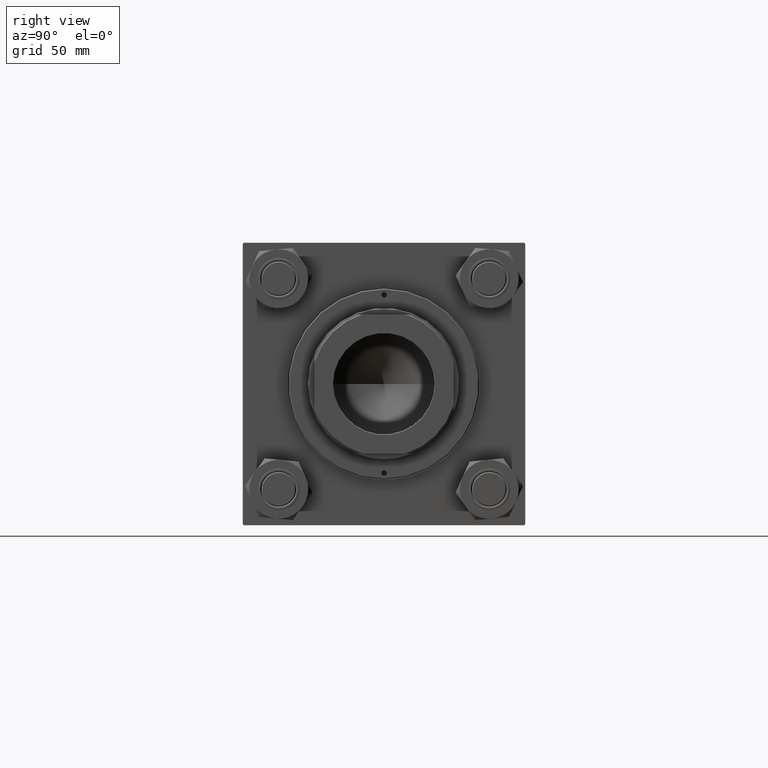
[diagram: clean part render]
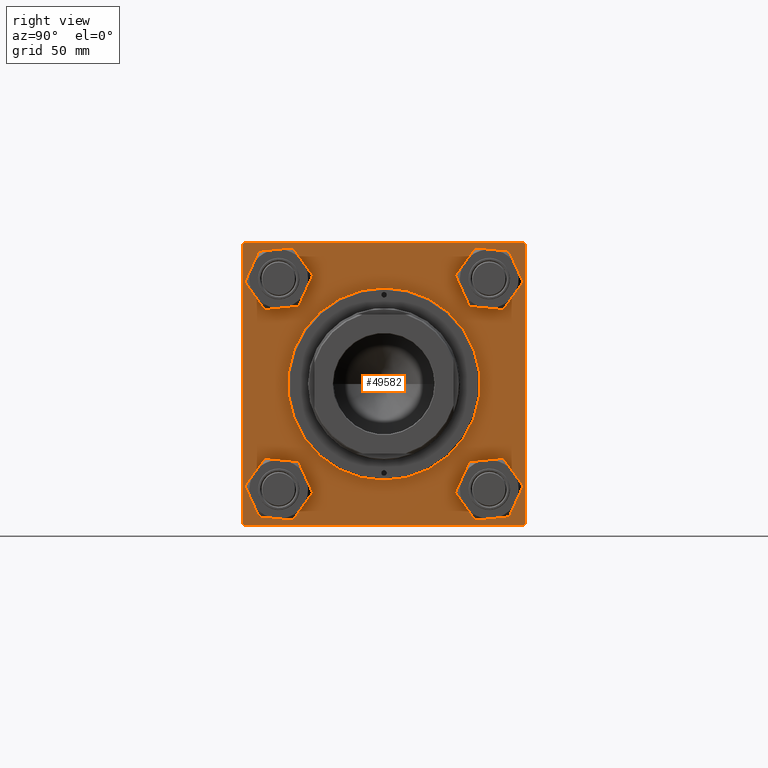
[diagram: same view with one face highlighted and labeled with its STEP entity id]
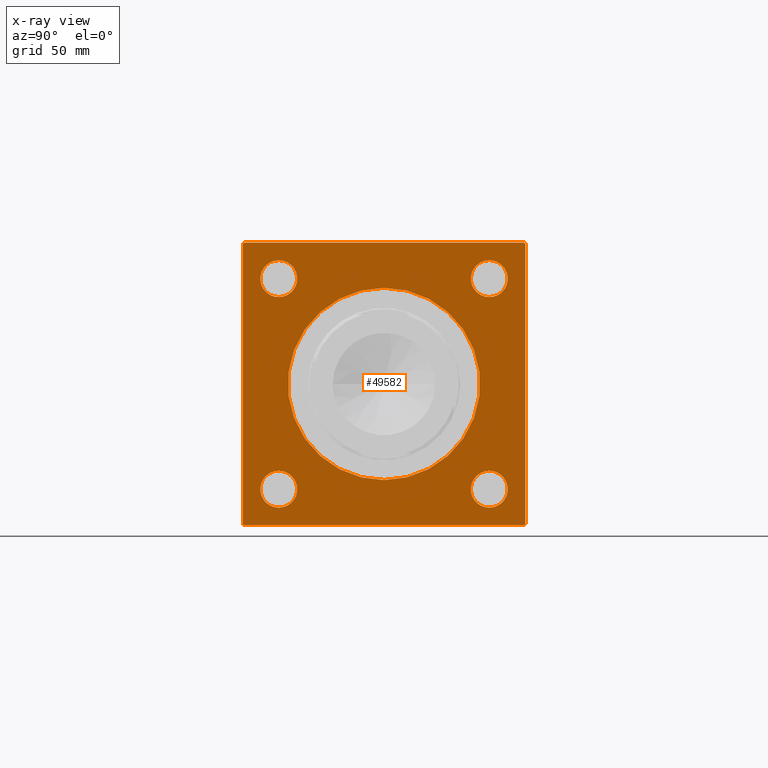
[diagram: x-ray of the same camera — body ghosted, the highlighted face saturated]
A machine part, right view. The second image highlights one B-rep face of the part: STEP entity #49582.
The next image is the same camera in x-ray: the body ghosted, the highlighted face saturated — about 0% of this face is hidden behind the body in this view.
In plain terms, the highlighted planar face has unit normal (-1, 0, 0).
Its self-contained STEP definition (entity closure, byte-faithful):
#9 = CARTESIAN_POINT ( 'NONE',  ( 188.0000000000000000, 64.50000000000005684, 65.00000000000001421 ) ) ;
#875 = FACE_BOUND ( 'NONE', #41148, .T. ) ;
#1134 = VERTEX_POINT ( 'NONE', #33930 ) ;
#1145 = CIRCLE ( 'NONE', #39385, 8.499999999999923617 ) ;
#1274 = DIRECTION ( 'NONE',  ( 0.000000000000000000, 0.000000000000000000, -1.000000000000000000 ) ) ;
#1844 = LINE ( 'NONE', #20961, #4630 ) ;
#2309 = DIRECTION ( 'NONE',  ( 0.000000000000000000, 0.000000000000000000, 1.000000000000000000 ) ) ;
#2698 = DIRECTION ( 'NONE',  ( 0.000000000000000000, 0.000000000000000000, 1.000000000000000000 ) ) ;
#2779 = DIRECTION ( 'NONE',  ( 0.000000000000000000, -1.000000000000000000, -1.067522139062650425E-16 ) ) ;
#2794 = CARTESIAN_POINT ( 'NONE',  ( 188.0000000000000000, 48.45000000000000995, 48.45000000000001705 ) ) ;
#2815 = ORIENTED_EDGE ( 'NONE', *, *, #35976, .T. ) ;
#2884 = LINE ( 'NONE', #33983, #15888 ) ;
#2941 = CARTESIAN_POINT ( 'NONE',  ( 188.0000000000000000, -64.99999999999998579, -64.50000000000002842 ) ) ;
#3026 = CIRCLE ( 'NONE', #46171, 8.499999999999923617 ) ;
#3197 = DIRECTION ( 'NONE',  ( 0.000000000000000000, 0.000000000000000000, 1.000000000000000000 ) ) ;
#3887 = ORIENTED_EDGE ( 'NONE', *, *, #15092, .T. ) ;
#3913 = CIRCLE ( 'NONE', #26737, 44.24999999999998579 ) ;
#4044 = VECTOR ( 'NONE', #42610, 1000.000000000000000 ) ;
#4048 = EDGE_LOOP ( 'NONE', ( #3887, #21356, #24901, #35928, #26268, #5721, #15705, #9945 ) ) ;
#4440 = FACE_BOUND ( 'NONE', #16186, .T. ) ;
#4630 = VECTOR ( 'NONE', #49265, 1000.000000000000000 ) ;
#5020 = VERTEX_POINT ( 'NONE', #46798 ) ;
#5179 = VERTEX_POINT ( 'NONE', #40887 ) ;
#5222 = AXIS2_PLACEMENT_3D ( 'NONE', #20505, #12363, #43978 ) ;
#5512 = LINE ( 'NONE', #9, #33856 ) ;
#5631 = CARTESIAN_POINT ( 'NONE',  ( 188.0000000000000000, -48.44999999999999574, -48.45000000000003126 ) ) ;
#5714 = DIRECTION ( 'NONE',  ( 0.000000000000000000, 0.000000000000000000, 1.000000000000000000 ) ) ;
#5721 = ORIENTED_EDGE ( 'NONE', *, *, #14626, .T. ) ;
#5783 = VERTEX_POINT ( 'NONE', #11870 ) ;
#5894 = VECTOR ( 'NONE', #50170, 999.9999999999998863 ) ;
#5965 = EDGE_CURVE ( 'NONE', #8320, #1134, #15832, .T. ) ;
#6529 = DIRECTION ( 'NONE',  ( -1.000000000000000000, 0.000000000000000000, -0.000000000000000000 ) ) ;
#7080 = ORIENTED_EDGE ( 'NONE', *, *, #42500, .T. ) ;
#7576 = CIRCLE ( 'NONE', #40940, 44.24999999999998579 ) ;
#7756 = DIRECTION ( 'NONE',  ( -1.000000000000000000, 0.000000000000000000, -0.000000000000000000 ) ) ;
#8320 = VERTEX_POINT ( 'NONE', #2941 ) ;
#8332 = AXIS2_PLACEMENT_3D ( 'NONE', #33350, #48663, #20869 ) ;
#8637 = VECTOR ( 'NONE', #38059, 1000.000000000000000 ) ;
#9578 = AXIS2_PLACEMENT_3D ( 'NONE', #44726, #17946, #5714 ) ;
#9686 = DIRECTION ( 'NONE',  ( 0.000000000000000000, 0.000000000000000000, 1.000000000000000000 ) ) ;
#9937 = VERTEX_POINT ( 'NONE', #25119 ) ;
#9945 = ORIENTED_EDGE ( 'NONE', *, *, #37678, .T. ) ;
#10754 = CARTESIAN_POINT ( 'NONE',  ( 188.0000000000000000, -48.44999999999999574, -39.95000000000010232 ) ) ;
#11488 = EDGE_CURVE ( 'NONE', #33847, #5179, #23172, .T. ) ;
#11661 = CARTESIAN_POINT ( 'NONE',  ( 188.0000000000000000, -64.99999999999998579, 64.50000000000008527 ) ) ;
#11870 = CARTESIAN_POINT ( 'NONE',  ( 188.0000000000000000, -48.44999999999999574, 39.95000000000010232 ) ) ;
#12363 = DIRECTION ( 'NONE',  ( -1.000000000000000000, 0.000000000000000000, -0.000000000000000000 ) ) ;
#12418 = EDGE_CURVE ( 'NONE', #48981, #1134, #2884, .T. ) ;
#12610 = ORIENTED_EDGE ( 'NONE', *, *, #11488, .T. ) ;
#13088 = EDGE_CURVE ( 'NONE', #45379, #44006, #1145, .T. ) ;
#13293 = EDGE_CURVE ( 'NONE', #5783, #27961, #23129, .T. ) ;
#13929 = CARTESIAN_POINT ( 'NONE',  ( 188.0000000000000000, 48.45000000000000995, -48.45000000000001705 ) ) ;
#14393 = DIRECTION ( 'NONE',  ( 0.000000000000000000, 0.000000000000000000, 1.000000000000000000 ) ) ;
#14626 = EDGE_CURVE ( 'NONE', #30441, #44946, #5512, .T. ) ;
#14799 = CIRCLE ( 'NONE', #21291, 8.499999999999923617 ) ;
#15092 = EDGE_CURVE ( 'NONE', #25868, #8320, #22513, .T. ) ;
#15428 = FACE_BOUND ( 'NONE', #35474, .T. ) ;
#15705 = ORIENTED_EDGE ( 'NONE', *, *, #39998, .T. ) ;
#15832 = LINE ( 'NONE', #27071, #4044 ) ;
#15849 = AXIS2_PLACEMENT_3D ( 'NONE', #5631, #29589, #2309 ) ;
#15888 = VECTOR ( 'NONE', #41639, 1000.000000000000000 ) ;
#16186 = EDGE_LOOP ( 'NONE', ( #16742, #12610 ) ) ;
#16263 = ORIENTED_EDGE ( 'NONE', *, *, #23770, .T. ) ;
#16667 = PLANE ( 'NONE',  #29081 ) ;
#16742 = ORIENTED_EDGE ( 'NONE', *, *, #19506, .T. ) ;
#16800 = VERTEX_POINT ( 'NONE', #32886 ) ;
#17846 = DIRECTION ( 'NONE',  ( -1.000000000000000000, 0.000000000000000000, -0.000000000000000000 ) ) ;
#17946 = DIRECTION ( 'NONE',  ( -1.000000000000000000, 0.000000000000000000, -0.000000000000000000 ) ) ;
#18234 = DIRECTION ( 'NONE',  ( -1.000000000000000000, 0.000000000000000000, -0.000000000000000000 ) ) ;
#18580 = CARTESIAN_POINT ( 'NONE',  ( 188.0000000000000000, 65.00000000000002842, 65.00000000000001421 ) ) ;
#19402 = CARTESIAN_POINT ( 'NONE',  ( 188.0000000000000000, 64.50000000000005684, 65.00000000000001421 ) ) ;
#19506 = EDGE_CURVE ( 'NONE', #5179, #33847, #37276, .T. ) ;
#19793 = VERTEX_POINT ( 'NONE', #25739 ) ;
#19794 = VECTOR ( 'NONE', #1274, 1000.000000000000000 ) ;
#19867 = CIRCLE ( 'NONE', #29668, 8.499999999999923617 ) ;
#19938 = VERTEX_POINT ( 'NONE', #31821 ) ;
#20505 = CARTESIAN_POINT ( 'NONE',  ( 188.0000000000000000, -48.44999999999999574, 48.45000000000003126 ) ) ;
#20869 = DIRECTION ( 'NONE',  ( 0.000000000000000000, 0.000000000000000000, 1.000000000000000000 ) ) ;
#20961 = CARTESIAN_POINT ( 'NONE',  ( 188.0000000000000000, 65.00000000000002842, -64.50000000000001421 ) ) ;
#21291 = AXIS2_PLACEMENT_3D ( 'NONE', #37862, #18234, #3197 ) ;
#21356 = ORIENTED_EDGE ( 'NONE', *, *, #5965, .T. ) ;
#22513 = LINE ( 'NONE', #29924, #8637 ) ;
#22763 = ORIENTED_EDGE ( 'NONE', *, *, #32064, .T. ) ;
#23129 = CIRCLE ( 'NONE', #5222, 8.499999999999923617 ) ;
#23172 = CIRCLE ( 'NONE', #15849, 8.499999999999923617 ) ;
#23209 = VERTEX_POINT ( 'NONE', #44410 ) ;
#23311 = DIRECTION ( 'NONE',  ( 0.000000000000000000, 0.000000000000000000, 1.000000000000000000 ) ) ;
#23770 = EDGE_CURVE ( 'NONE', #5020, #19938, #3913, .T. ) ;
#24901 = ORIENTED_EDGE ( 'NONE', *, *, #12418, .F. ) ;
#25119 = CARTESIAN_POINT ( 'NONE',  ( 188.0000000000000000, -64.50000000000008527, 65.00000000000000000 ) ) ;
#25739 = CARTESIAN_POINT ( 'NONE',  ( 188.0000000000000000, 48.45000000000000995, 39.95000000000008811 ) ) ;
#25868 = VERTEX_POINT ( 'NONE', #38510 ) ;
#26268 = ORIENTED_EDGE ( 'NONE', *, *, #39981, .F. ) ;
#26737 = AXIS2_PLACEMENT_3D ( 'NONE', #42157, #29683, #14393 ) ;
#26835 = DIRECTION ( 'NONE',  ( -1.000000000000000000, 0.000000000000000000, -0.000000000000000000 ) ) ;
#27071 = CARTESIAN_POINT ( 'NONE',  ( 188.0000000000000000, -64.50000000000002842, -65.00000000000001421 ) ) ;
#27580 = ORIENTED_EDGE ( 'NONE', *, *, #13088, .T. ) ;
#27889 = CARTESIAN_POINT ( 'NONE',  ( 188.0000000000000000, 64.50000000000002842, -64.99999999999998579 ) ) ;
#27961 = VERTEX_POINT ( 'NONE', #47488 ) ;
#28148 = FACE_OUTER_BOUND ( 'NONE', #4048, .T. ) ;
#28409 = FACE_BOUND ( 'NONE', #46796, .T. ) ;
#29081 = AXIS2_PLACEMENT_3D ( 'NONE', #48532, #29150, #32211 ) ;
#29150 = DIRECTION ( 'NONE',  ( -1.000000000000000000, 0.000000000000000000, -0.000000000000000000 ) ) ;
#29589 = DIRECTION ( 'NONE',  ( -1.000000000000000000, 0.000000000000000000, -0.000000000000000000 ) ) ;
#29668 = AXIS2_PLACEMENT_3D ( 'NONE', #2794, #17846, #9686 ) ;
#29683 = DIRECTION ( 'NONE',  ( -1.000000000000000000, 0.000000000000000000, -0.000000000000000000 ) ) ;
#29924 = CARTESIAN_POINT ( 'NONE',  ( 188.0000000000000000, -64.99999999999998579, 65.00000000000000000 ) ) ;
#30327 = CIRCLE ( 'NONE', #8332, 8.499999999999923617 ) ;
#30441 = VERTEX_POINT ( 'NONE', #48796 ) ;
#31821 = CARTESIAN_POINT ( 'NONE',  ( 188.0000000000000000, 0.000000000000000000, -44.24999999999998579 ) ) ;
#32064 = EDGE_CURVE ( 'NONE', #27961, #5783, #14799, .T. ) ;
#32211 = DIRECTION ( 'NONE',  ( -0.000000000000000000, 0.000000000000000000, 1.000000000000000000 ) ) ;
#32886 = CARTESIAN_POINT ( 'NONE',  ( 188.0000000000000000, 48.45000000000000995, 56.94999999999993889 ) ) ;
#33350 = CARTESIAN_POINT ( 'NONE',  ( 188.0000000000000000, 48.45000000000000995, 48.45000000000001705 ) ) ;
#33777 = CARTESIAN_POINT ( 'NONE',  ( 188.0000000000000000, 48.45000000000000995, -56.94999999999993889 ) ) ;
#33847 = VERTEX_POINT ( 'NONE', #10754 ) ;
#33856 = VECTOR ( 'NONE', #47174, 1000.000000000000000 ) ;
#33871 = LINE ( 'NONE', #18580, #48313 ) ;
#33930 = CARTESIAN_POINT ( 'NONE',  ( 188.0000000000000000, -64.50000000000002842, -65.00000000000001421 ) ) ;
#33983 = CARTESIAN_POINT ( 'NONE',  ( 188.0000000000000000, 65.00000000000002842, -64.99999999999998579 ) ) ;
#35474 = EDGE_LOOP ( 'NONE', ( #7080, #49718 ) ) ;
#35928 = ORIENTED_EDGE ( 'NONE', *, *, #44734, .T. ) ;
#35976 = EDGE_CURVE ( 'NONE', #19938, #5020, #7576, .T. ) ;
#36196 = CARTESIAN_POINT ( 'NONE',  ( 188.0000000000000000, 65.00000000000002842, 65.00000000000001421 ) ) ;
#36276 = CARTESIAN_POINT ( 'NONE',  ( 188.0000000000000000, 0.000000000000000000, 0.000000000000000000 ) ) ;
#36441 = LINE ( 'NONE', #36196, #19794 ) ;
#37276 = CIRCLE ( 'NONE', #9578, 8.499999999999923617 ) ;
#37678 = EDGE_CURVE ( 'NONE', #9937, #25868, #42262, .T. ) ;
#37862 = CARTESIAN_POINT ( 'NONE',  ( 188.0000000000000000, -48.44999999999999574, 48.45000000000003126 ) ) ;
#38059 = DIRECTION ( 'NONE',  ( 0.000000000000000000, 0.000000000000000000, -1.000000000000000000 ) ) ;
#38227 = EDGE_LOOP ( 'NONE', ( #50180, #27580 ) ) ;
#38432 = EDGE_CURVE ( 'NONE', #16800, #19793, #30327, .T. ) ;
#38510 = CARTESIAN_POINT ( 'NONE',  ( 188.0000000000000000, -64.99999999999998579, 64.50000000000008527 ) ) ;
#39358 = FACE_BOUND ( 'NONE', #38227, .T. ) ;
#39385 = AXIS2_PLACEMENT_3D ( 'NONE', #13929, #6529, #2698 ) ;
#39981 = EDGE_CURVE ( 'NONE', #30441, #23209, #36441, .T. ) ;
#39998 = EDGE_CURVE ( 'NONE', #44946, #9937, #33871, .T. ) ;
#40445 = ORIENTED_EDGE ( 'NONE', *, *, #13293, .T. ) ;
#40887 = CARTESIAN_POINT ( 'NONE',  ( 188.0000000000000000, -48.44999999999999574, -56.94999999999995310 ) ) ;
#40940 = AXIS2_PLACEMENT_3D ( 'NONE', #36276, #26835, #46211 ) ;
#41148 = EDGE_LOOP ( 'NONE', ( #2815, #16263 ) ) ;
#41541 = CARTESIAN_POINT ( 'NONE',  ( 188.0000000000000000, 48.45000000000000995, -39.95000000000008811 ) ) ;
#41639 = DIRECTION ( 'NONE',  ( 0.000000000000000000, -1.000000000000000000, -2.135044278125300850E-16 ) ) ;
#42157 = CARTESIAN_POINT ( 'NONE',  ( 188.0000000000000000, 0.000000000000000000, 0.000000000000000000 ) ) ;
#42182 = CARTESIAN_POINT ( 'NONE',  ( 188.0000000000000000, 48.45000000000000995, -48.45000000000001705 ) ) ;
#42262 = LINE ( 'NONE', #11661, #5894 ) ;
#42500 = EDGE_CURVE ( 'NONE', #19793, #16800, #19867, .T. ) ;
#42610 = DIRECTION ( 'NONE',  ( 0.000000000000000000, 0.7071067811865279218, -0.7071067811865672237 ) ) ;
#43978 = DIRECTION ( 'NONE',  ( 0.000000000000000000, 0.000000000000000000, 1.000000000000000000 ) ) ;
#44006 = VERTEX_POINT ( 'NONE', #33777 ) ;
#44410 = CARTESIAN_POINT ( 'NONE',  ( 188.0000000000000000, 65.00000000000002842, -64.50000000000001421 ) ) ;
#44726 = CARTESIAN_POINT ( 'NONE',  ( 188.0000000000000000, -48.44999999999999574, -48.45000000000003126 ) ) ;
#44734 = EDGE_CURVE ( 'NONE', #48981, #23209, #1844, .T. ) ;
#44946 = VERTEX_POINT ( 'NONE', #19402 ) ;
#45379 = VERTEX_POINT ( 'NONE', #41541 ) ;
#46171 = AXIS2_PLACEMENT_3D ( 'NONE', #42182, #7756, #23311 ) ;
#46211 = DIRECTION ( 'NONE',  ( 0.000000000000000000, 0.000000000000000000, 1.000000000000000000 ) ) ;
#46796 = EDGE_LOOP ( 'NONE', ( #40445, #22763 ) ) ;
#46798 = CARTESIAN_POINT ( 'NONE',  ( 188.0000000000000000, 5.419062086227035828E-15, 44.24999999999998579 ) ) ;
#47174 = DIRECTION ( 'NONE',  ( 0.000000000000000000, -0.7071067811865279218, 0.7071067811865671127 ) ) ;
#47488 = CARTESIAN_POINT ( 'NONE',  ( 188.0000000000000000, -48.44999999999999574, 56.94999999999995310 ) ) ;
#48313 = VECTOR ( 'NONE', #2779, 1000.000000000000000 ) ;
#48532 = CARTESIAN_POINT ( 'NONE',  ( 188.0000000000000000, 0.000000000000000000, 0.000000000000000000 ) ) ;
#48663 = DIRECTION ( 'NONE',  ( -1.000000000000000000, 0.000000000000000000, -0.000000000000000000 ) ) ;
#48796 = CARTESIAN_POINT ( 'NONE',  ( 188.0000000000000000, 65.00000000000002842, 64.50000000000001421 ) ) ;
#48878 = EDGE_CURVE ( 'NONE', #44006, #45379, #3026, .T. ) ;
#48981 = VERTEX_POINT ( 'NONE', #27889 ) ;
#49265 = DIRECTION ( 'NONE',  ( -0.000000000000000000, 0.7071067811865671127, 0.7071067811865279218 ) ) ;
#49582 = ADVANCED_FACE ( 'NONE', ( #4440, #39358, #15428, #28409, #875, #28148 ), #16667, .F. ) ;
#49718 = ORIENTED_EDGE ( 'NONE', *, *, #38432, .T. ) ;
#50170 = DIRECTION ( 'NONE',  ( -0.000000000000000000, -0.7071067811865376918, -0.7071067811865574537 ) ) ;
#50180 = ORIENTED_EDGE ( 'NONE', *, *, #48878, .T. ) ;